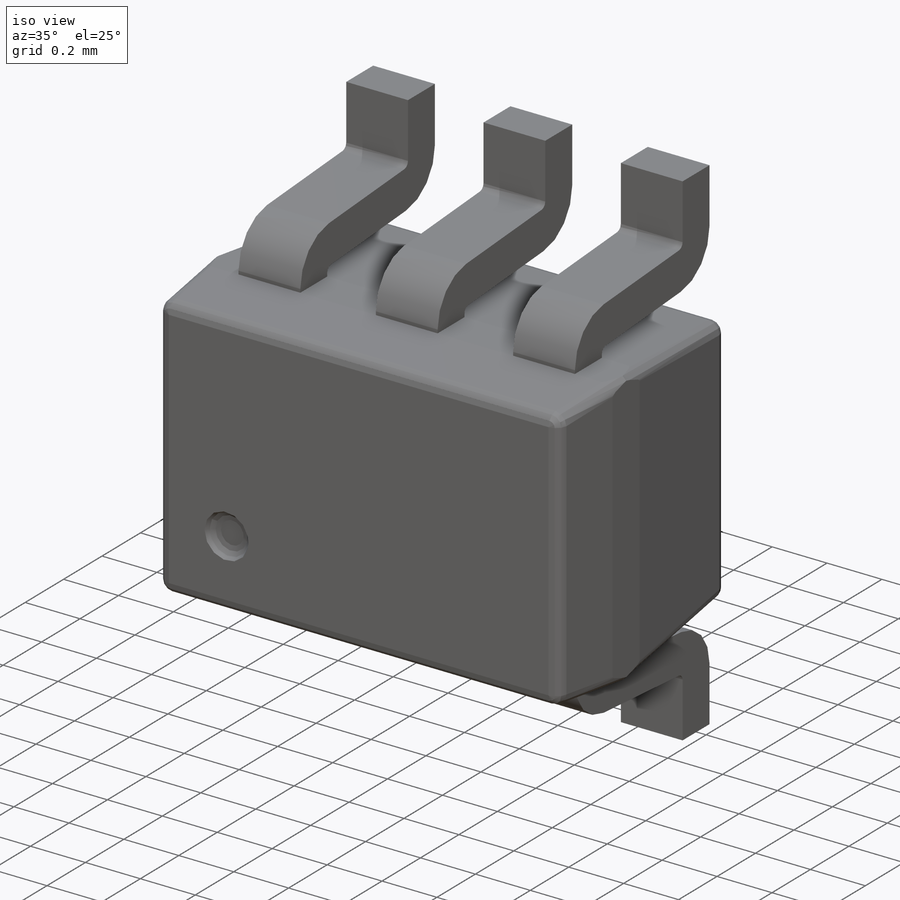
[diagram: iso view]
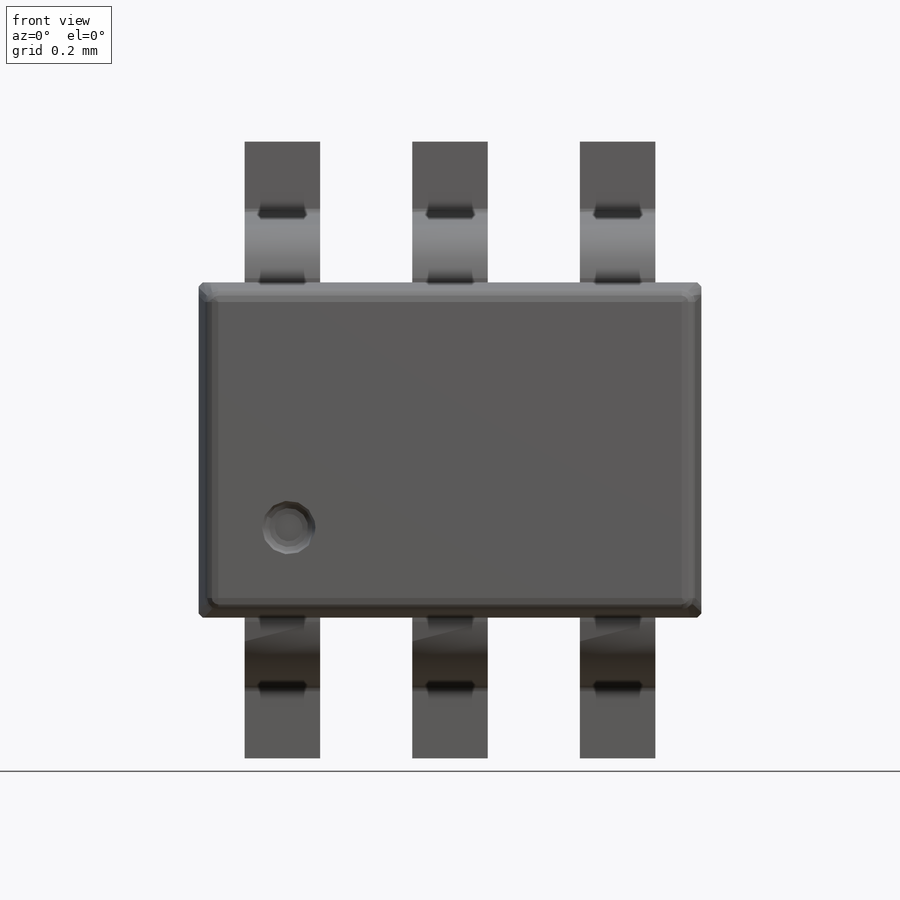
[diagram: front view]
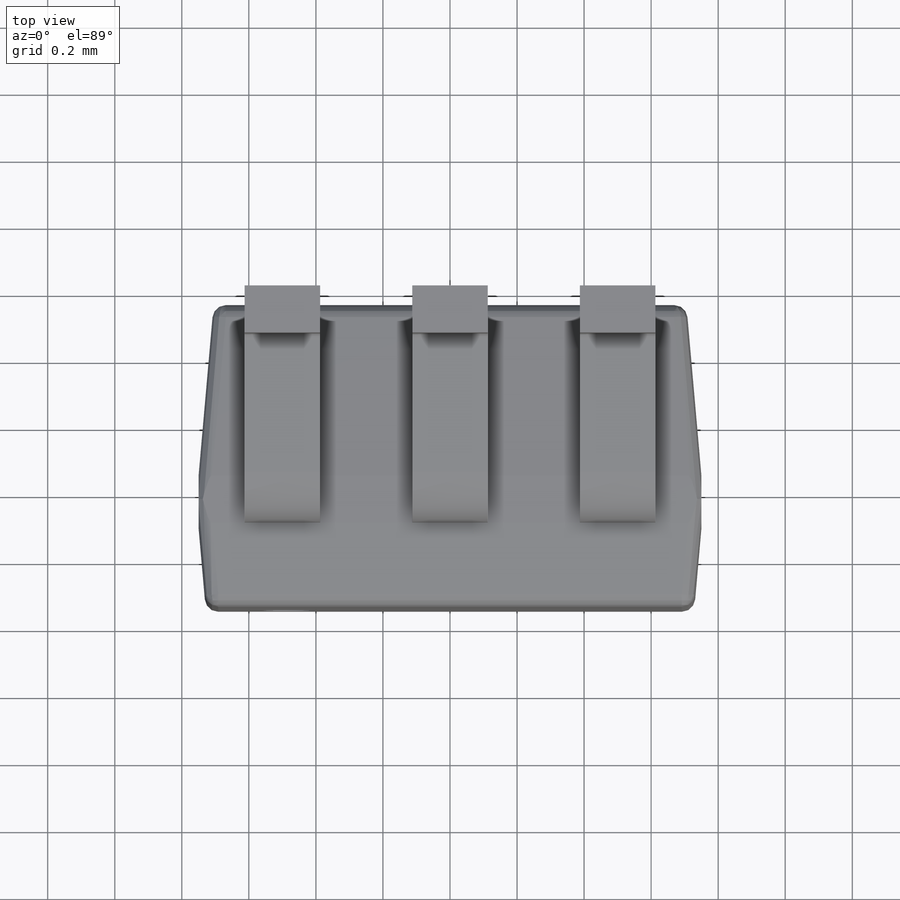
[diagram: top view]
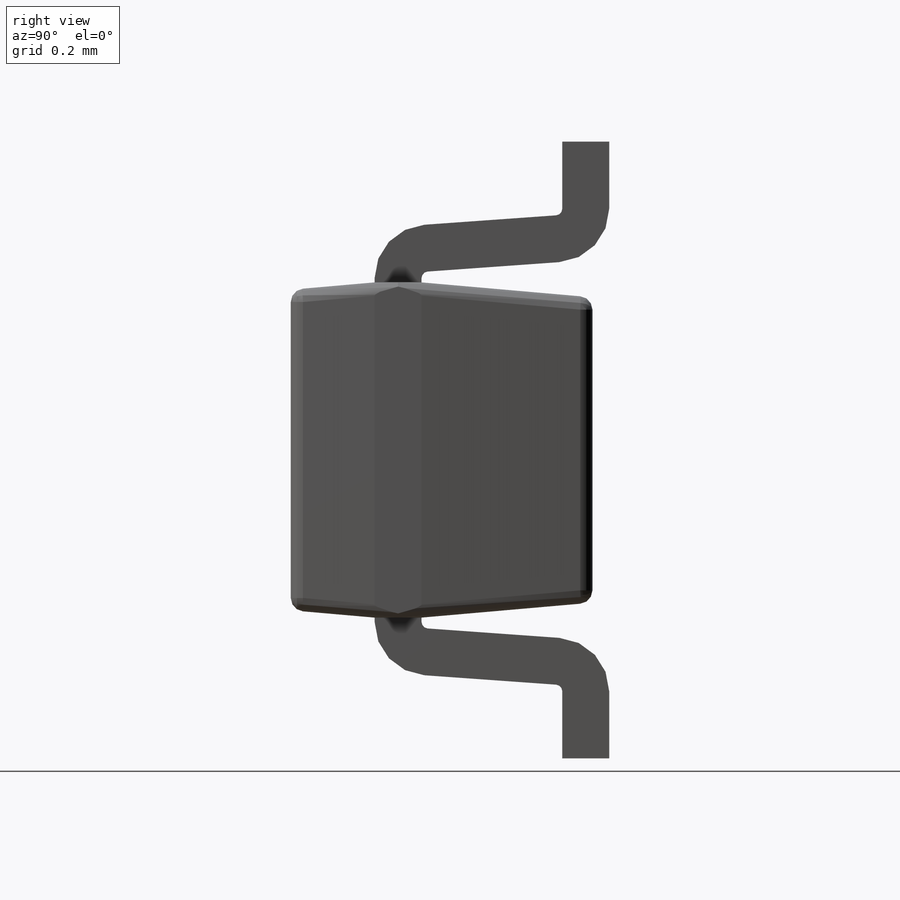
[diagram: right view]
SOLIDWORKS PART (.sldprt)
format: sldprt  version: not decoded by parser v0  size: 524,800 bytes
history: native  units: mm
features: sketch x5, plane x3, extrude x2, chamfer x2, pattern_linear x2, mirror x2, cut_extrude x2, material x1, fillet x1 (+9 scaffold rows collapsed)
feature tree (29):
  scaffold x9  (default folders/planes/origin — collapsed)
  material  "Material <not specified>"
  plane  "Alzado"
  plane  "Planta"
  plane  "Vista lateral"
  sketch  "Croquis1"  dims[D1=1.0mm D2=1.5mm]
  extrude  "Saliente-Extruir1"  Depth=0.51mm
  chamfer  "Chaflán1"  Distance=0.51mm Angle=5deg
  sketch  "Croquis2"
  extrude  "Saliente-Extruir2"  Depth=0.39mm
  chamfer  "Chaflán2"  Distance=0.25mm Angle=5deg
  fillet  "Redondeo1"  Radius=0.04mm
  sketch  "Croquis4"  dims[c1.D5=0.16mm c1.D1=0.02mm c1.D2=0.16mm c1.D6=0.02mm c2.D1=0.34mm c2.D2=0.425mm c2.D3=~0.076021mm c2.D4=0.04mm c2.D6=0.2mm c3.D1=0.425mm c3.D5=0.2mm c4.D1=0.225mm c4.D5=0.14mm c4.D6=1.0mm c4.D7=5.0mm]
  pattern_linear  "MatrizL2"  Count1=2 Count2=2 Spacing1=0.5mm Spacing2=0.5mm
  mirror  "Simetría2"
  sketch  "Croquis7"
  cut_extrude  "Cortar-Extruir1"  Depth=0.225mm
  sketch  "Croquis8"  dims[D1=0.25mm D2=0.25mm]
  cut_extrude  "Cortar-Extruir3"  Depth=0.03mm
  pattern_linear  "Redondeo2"  Spacing1=0.04mm  [1 undecoded]
  mirror  "Mirror1"
decode coverage: 12 of 16 modeling features carry decoded parameters
note: ~ marks probable driven/reference dimensions
note: 1 parameter value undecoded
note: suppression state not decoded; provenance and decode notes live in map.json
